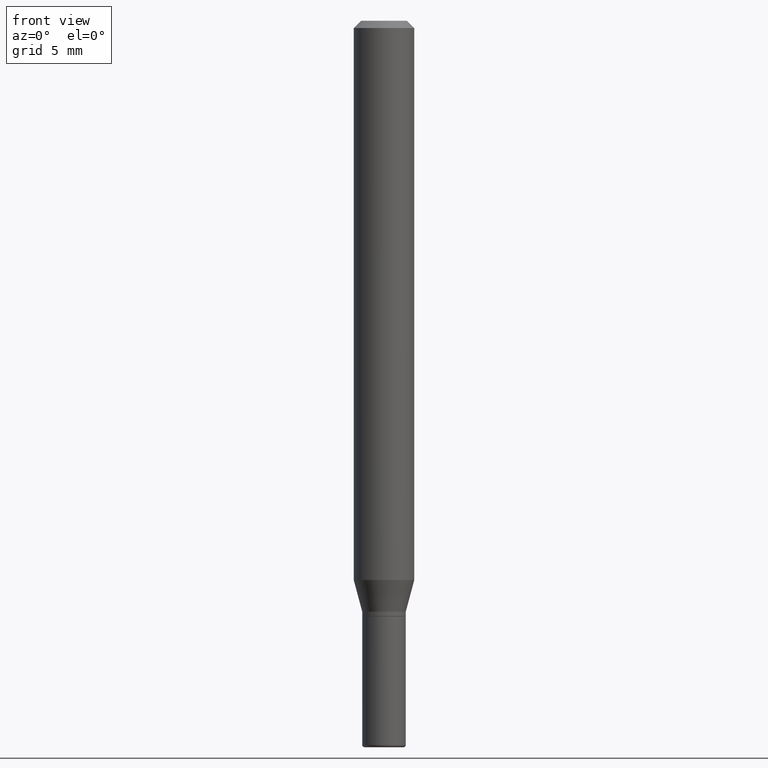
[diagram: clean part render]
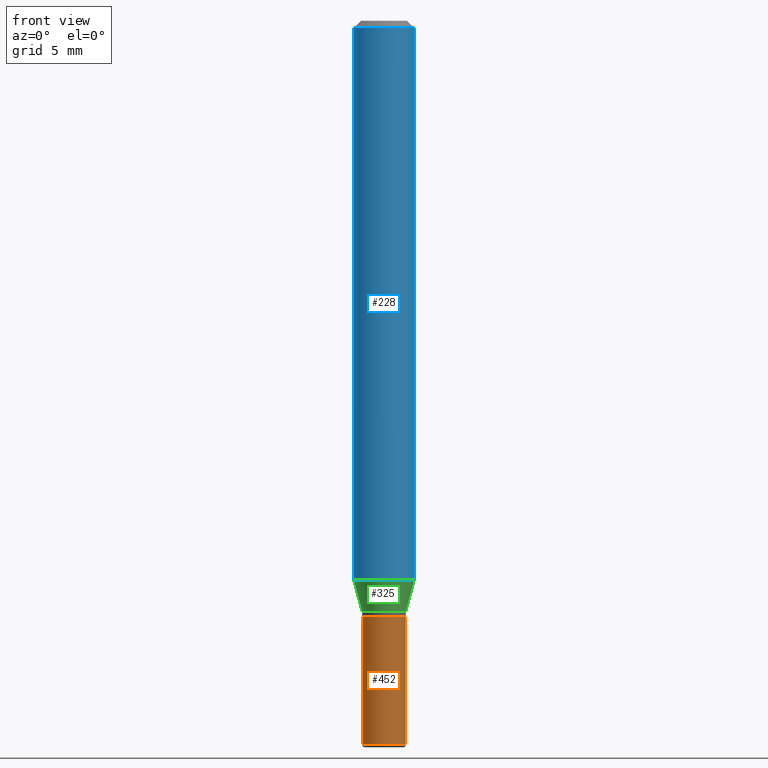
[diagram: same view with three faces highlighted in distinct colors, each labeled with its STEP entity id]
A machine part, front view with three faces highlighted in distinct colors.
Their STEP definitions:

[orange] entity #452 — the highlighted cylindrical surface (edge-blend (fillet) strip) has radius 1.143 mm, axis along (-0, 0, 1).
#18 = ORIENTED_EDGE ( 'NONE', *, *, #237, .F. ) ;
#26 = LINE ( 'NONE', #470, #53 ) ;
#53 = VECTOR ( 'NONE', #344, 39.37007874015748143 ) ;
#66 = CYLINDRICAL_SURFACE ( 'NONE', #279, 0.04499999999999994976 ) ;
#69 = EDGE_CURVE ( 'NONE', #379, #206, #390, .T. ) ;
#91 = VECTOR ( 'NONE', #107, 39.37007874015748143 ) ;
#107 = DIRECTION ( 'NONE',  ( -2.445468806185136877E-29, 3.491481338843145188E-15, 1.000000000000000000 ) ) ;
#129 = CIRCLE ( 'NONE', #489, 0.04499999999999999833 ) ;
#132 = CARTESIAN_POINT ( 'NONE',  ( 3.007926631607718216E-29, -4.294522046777069173E-15, -1.230000000000000204 ) ) ;
#137 = CARTESIAN_POINT ( 'NONE',  ( -0.04499999999999994976, 3.197442310920447267E-16, -2.213520790614704757E-30 ) ) ;
#143 = CARTESIAN_POINT ( 'NONE',  ( -0.04499999999999990119, -4.437399093081741973E-15, -1.495000000000000329 ) ) ;
#157 = CARTESIAN_POINT ( 'NONE',  ( 0.04499999999999990119, -5.533997922066385616E-15, -1.495000000000000329 ) ) ;
#158 = AXIS2_PLACEMENT_3D ( 'NONE', #448, #365, #204 ) ;
#172 = VERTEX_POINT ( 'NONE', #442 ) ;
#178 = DIRECTION ( 'NONE',  ( 1.000000000000000000, -6.982962677686266711E-15, 4.876176775795934672E-29 ) ) ;
#204 = DIRECTION ( 'NONE',  ( 1.000000000000000000, -6.982962677686261977E-15, 0.000000000000000000 ) ) ;
#206 = VERTEX_POINT ( 'NONE', #157 ) ;
#237 = EDGE_CURVE ( 'NONE', #255, #172, #129, .T. ) ;
#255 = VERTEX_POINT ( 'NONE', #291 ) ;
#258 = ORIENTED_EDGE ( 'NONE', *, *, #360, .F. ) ;
#279 = AXIS2_PLACEMENT_3D ( 'NONE', #346, #389, #178 ) ;
#290 = DIRECTION ( 'NONE',  ( -2.445468806185136597E-29, 3.491481338843145583E-15, 1.000000000000000000 ) ) ;
#291 = CARTESIAN_POINT ( 'NONE',  ( -0.04499999999999999833, -4.437399093081741973E-15, -1.230000000000000204 ) ) ;
#304 = FACE_OUTER_BOUND ( 'NONE', #461, .T. ) ;
#336 = LINE ( 'NONE', #137, #91 ) ;
#341 = DIRECTION ( 'NONE',  ( 1.000000000000000000, -6.982962677686269077E-15, 0.000000000000000000 ) ) ;
#344 = DIRECTION ( 'NONE',  ( -2.445468806185136877E-29, 3.491481338843145188E-15, 1.000000000000000000 ) ) ;
#346 = CARTESIAN_POINT ( 'NONE',  ( 0.000000000000000000, 0.000000000000000000, 0.000000000000000000 ) ) ;
#360 = EDGE_CURVE ( 'NONE', #379, #255, #336, .T. ) ;
#365 = DIRECTION ( 'NONE',  ( -2.445468806185136597E-29, 3.491481338843145583E-15, 1.000000000000000000 ) ) ;
#379 = VERTEX_POINT ( 'NONE', #143 ) ;
#389 = DIRECTION ( 'NONE',  ( -2.445468806185136597E-29, 3.491481338843145583E-15, 1.000000000000000000 ) ) ;
#390 = CIRCLE ( 'NONE', #158, 0.04499999999999990119 ) ;
#425 = ORIENTED_EDGE ( 'NONE', *, *, #456, .T. ) ;
#442 = CARTESIAN_POINT ( 'NONE',  ( 0.04499999999999999833, -4.608755367272951648E-15, -1.230000000000000204 ) ) ;
#448 = CARTESIAN_POINT ( 'NONE',  ( 3.655975865246779683E-29, -5.219764601570503930E-15, -1.495000000000000329 ) ) ;
#452 = ADVANCED_FACE ( 'NONE', ( #304 ), #66, .T. ) ;
#456 = EDGE_CURVE ( 'NONE', #206, #172, #26, .T. ) ;
#461 = EDGE_LOOP ( 'NONE', ( #258, #509, #425, #18 ) ) ;
#470 = CARTESIAN_POINT ( 'NONE',  ( 0.04499999999999994976, -3.142333204958816371E-16, 2.194279549108168164E-30 ) ) ;
#489 = AXIS2_PLACEMENT_3D ( 'NONE', #132, #290, #341 ) ;
#509 = ORIENTED_EDGE ( 'NONE', *, *, #69, .T. ) ;

[blue] entity #228 — the highlighted cylindrical surface (edge-blend (fillet) strip) has radius 1.5875 mm, axis along (-0, 0, 1).
#10 = AXIS2_PLACEMENT_3D ( 'NONE', #330, #55, #300 ) ;
#29 = DIRECTION ( 'NONE',  ( 1.000000000000000000, -6.982962677686266711E-15, 0.000000000000000000 ) ) ;
#39 = DIRECTION ( 'NONE',  ( -2.445468806185136877E-29, 3.491481338843145188E-15, 1.000000000000000000 ) ) ;
#55 = DIRECTION ( 'NONE',  ( -2.445468806185136597E-29, 3.491481338843145583E-15, 1.000000000000000000 ) ) ;
#56 = VERTEX_POINT ( 'NONE', #480 ) ;
#70 = LINE ( 'NONE', #185, #306 ) ;
#76 = LINE ( 'NONE', #398, #372 ) ;
#110 = ORIENTED_EDGE ( 'NONE', *, *, #219, .T. ) ;
#133 = ORIENTED_EDGE ( 'NONE', *, *, #381, .F. ) ;
#144 = AXIS2_PLACEMENT_3D ( 'NONE', #468, #503, #29 ) ;
#152 = CIRCLE ( 'NONE', #10, 0.06250000000000000000 ) ;
#174 = EDGE_LOOP ( 'NONE', ( #133, #110, #326, #417 ) ) ;
#179 = DIRECTION ( 'NONE',  ( -2.445468806185136877E-29, 3.491481338843145188E-15, 1.000000000000000000 ) ) ;
#180 = EDGE_CURVE ( 'NONE', #232, #186, #76, .T. ) ;
#185 = CARTESIAN_POINT ( 'NONE',  ( -0.06250000000000000000, 4.440892098500626162E-16, -3.074334431409316114E-30 ) ) ;
#186 = VERTEX_POINT ( 'NONE', #357 ) ;
#205 = CYLINDRICAL_SURFACE ( 'NONE', #428, 0.06250000000000000000 ) ;
#216 = DIRECTION ( 'NONE',  ( -2.445468806185136597E-29, 3.491481338843145583E-15, 1.000000000000000000 ) ) ;
#219 = EDGE_CURVE ( 'NONE', #497, #232, #152, .T. ) ;
#228 = ADVANCED_FACE ( 'NONE', ( #491 ), #205, .T. ) ;
#232 = VERTEX_POINT ( 'NONE', #297 ) ;
#247 = CARTESIAN_POINT ( 'NONE',  ( 0.000000000000000000, 0.000000000000000000, 0.000000000000000000 ) ) ;
#257 = DIRECTION ( 'NONE',  ( 1.000000000000000000, -6.982962677686266711E-15, 4.876176775795935793E-29 ) ) ;
#297 = CARTESIAN_POINT ( 'NONE',  ( 0.06250000000000000000, -4.468010650114805770E-15, -1.154689110867544111 ) ) ;
#300 = DIRECTION ( 'NONE',  ( 1.000000000000000000, -6.982962677686262766E-15, 0.000000000000000000 ) ) ;
#306 = VECTOR ( 'NONE', #179, 39.37007874015748143 ) ;
#326 = ORIENTED_EDGE ( 'NONE', *, *, #180, .T. ) ;
#330 = CARTESIAN_POINT ( 'NONE',  ( 2.823756201468229950E-29, -4.031575482759414101E-15, -1.154689110867544111 ) ) ;
#357 = CARTESIAN_POINT ( 'NONE',  ( 0.06250000000000000000, -4.888073874380378612E-16, -0.01499999999999970281 ) ) ;
#372 = VECTOR ( 'NONE', #39, 39.37007874015748143 ) ;
#381 = EDGE_CURVE ( 'NONE', #497, #56, #70, .T. ) ;
#386 = CARTESIAN_POINT ( 'NONE',  ( -0.06250000000000000000, -3.587486272909351485E-15, -1.154689110867544111 ) ) ;
#398 = CARTESIAN_POINT ( 'NONE',  ( 0.06250000000000000000, -4.364351673553916694E-16, 3.047610484872459871E-30 ) ) ;
#417 = ORIENTED_EDGE ( 'NONE', *, *, #462, .F. ) ;
#428 = AXIS2_PLACEMENT_3D ( 'NONE', #247, #216, #257 ) ;
#462 = EDGE_CURVE ( 'NONE', #56, #186, #482, .T. ) ;
#468 = CARTESIAN_POINT ( 'NONE',  ( 3.668203209277632395E-31, -5.237222008264614861E-17, -0.01499999999999970281 ) ) ;
#480 = CARTESIAN_POINT ( 'NONE',  ( -0.06250000000000000000, -1.597884641570967382E-15, -0.01499999999999970281 ) ) ;
#482 = CIRCLE ( 'NONE', #144, 0.06250000000000000000 ) ;
#491 = FACE_OUTER_BOUND ( 'NONE', #174, .T. ) ;
#497 = VERTEX_POINT ( 'NONE', #386 ) ;
#503 = DIRECTION ( 'NONE',  ( -2.445468806185136597E-29, 3.491481338843145583E-15, 1.000000000000000000 ) ) ;

[green] entity #325 — the highlighted conical surface has half-angle 15 deg.
#4 = ORIENTED_EDGE ( 'NONE', *, *, #65, .T. ) ;
#10 = AXIS2_PLACEMENT_3D ( 'NONE', #330, #55, #300 ) ;
#21 = CIRCLE ( 'NONE', #458, 0.04499999999999992895 ) ;
#28 = VECTOR ( 'NONE', #320, 39.37007874015748854 ) ;
#49 = CARTESIAN_POINT ( 'NONE',  ( 2.983471943545866110E-29, -4.259607233388636735E-15, -1.219999999999999751 ) ) ;
#55 = DIRECTION ( 'NONE',  ( -2.445468806185136597E-29, 3.491481338843145583E-15, 1.000000000000000000 ) ) ;
#65 = EDGE_CURVE ( 'NONE', #260, #232, #487, .T. ) ;
#112 = VECTOR ( 'NONE', #431, 39.37007874015748854 ) ;
#121 = EDGE_CURVE ( 'NONE', #135, #260, #21, .T. ) ;
#135 = VERTEX_POINT ( 'NONE', #245 ) ;
#152 = CIRCLE ( 'NONE', #10, 0.06250000000000000000 ) ;
#194 = DIRECTION ( 'NONE',  ( 1.000000000000000000, -6.982962677686257244E-15, 0.000000000000000000 ) ) ;
#209 = CARTESIAN_POINT ( 'NONE',  ( 0.04499999999999992895, -4.573840553884517633E-15, -1.219999999999999751 ) ) ;
#211 = DIRECTION ( 'NONE',  ( 1.000000000000000000, -6.982962677686257244E-15, 0.000000000000000000 ) ) ;
#214 = DIRECTION ( 'NONE',  ( -2.445468806185136597E-29, 3.491481338843145583E-15, 1.000000000000000000 ) ) ;
#219 = EDGE_CURVE ( 'NONE', #497, #232, #152, .T. ) ;
#232 = VERTEX_POINT ( 'NONE', #297 ) ;
#245 = CARTESIAN_POINT ( 'NONE',  ( -0.04499999999999992895, -3.763674637602971820E-15, -1.219999999999999751 ) ) ;
#260 = VERTEX_POINT ( 'NONE', #209 ) ;
#268 = EDGE_LOOP ( 'NONE', ( #273, #369, #4, #334 ) ) ;
#270 = AXIS2_PLACEMENT_3D ( 'NONE', #49, #214, #211 ) ;
#272 = CARTESIAN_POINT ( 'NONE',  ( -0.04499999999999992895, -3.939863002296592156E-15, -1.219999999999999751 ) ) ;
#273 = ORIENTED_EDGE ( 'NONE', *, *, #432, .F. ) ;
#283 = CARTESIAN_POINT ( 'NONE',  ( 0.04499999999999992895, -4.573840553884517633E-15, -1.219999999999999751 ) ) ;
#286 = DIRECTION ( 'NONE',  ( -2.445468806185136597E-29, 3.491481338843145583E-15, 1.000000000000000000 ) ) ;
#297 = CARTESIAN_POINT ( 'NONE',  ( 0.06250000000000000000, -4.468010650114805770E-15, -1.154689110867544111 ) ) ;
#300 = DIRECTION ( 'NONE',  ( 1.000000000000000000, -6.982962677686262766E-15, 0.000000000000000000 ) ) ;
#311 = LINE ( 'NONE', #272, #112 ) ;
#320 = DIRECTION ( 'NONE',  ( 0.2588190451025205729, 1.565188264969627490E-15, 0.9659258262890682012 ) ) ;
#323 = CARTESIAN_POINT ( 'NONE',  ( 2.983471943545866110E-29, -4.259607233388636735E-15, -1.219999999999999751 ) ) ;
#325 = ADVANCED_FACE ( 'NONE', ( #333 ), #436, .T. ) ;
#330 = CARTESIAN_POINT ( 'NONE',  ( 2.823756201468229950E-29, -4.031575482759414101E-15, -1.154689110867544111 ) ) ;
#333 = FACE_OUTER_BOUND ( 'NONE', #268, .T. ) ;
#334 = ORIENTED_EDGE ( 'NONE', *, *, #219, .F. ) ;
#369 = ORIENTED_EDGE ( 'NONE', *, *, #121, .T. ) ;
#386 = CARTESIAN_POINT ( 'NONE',  ( -0.06250000000000000000, -3.587486272909351485E-15, -1.154689110867544111 ) ) ;
#431 = DIRECTION ( 'NONE',  ( -0.2588190451025205729, 5.211531920934544731E-15, 0.9659258262890682012 ) ) ;
#432 = EDGE_CURVE ( 'NONE', #135, #497, #311, .T. ) ;
#436 = CONICAL_SURFACE ( 'NONE', #270, 0.04499999999999992895, 0.2617993877991492968 ) ;
#458 = AXIS2_PLACEMENT_3D ( 'NONE', #323, #286, #194 ) ;
#487 = LINE ( 'NONE', #283, #28 ) ;
#497 = VERTEX_POINT ( 'NONE', #386 ) ;